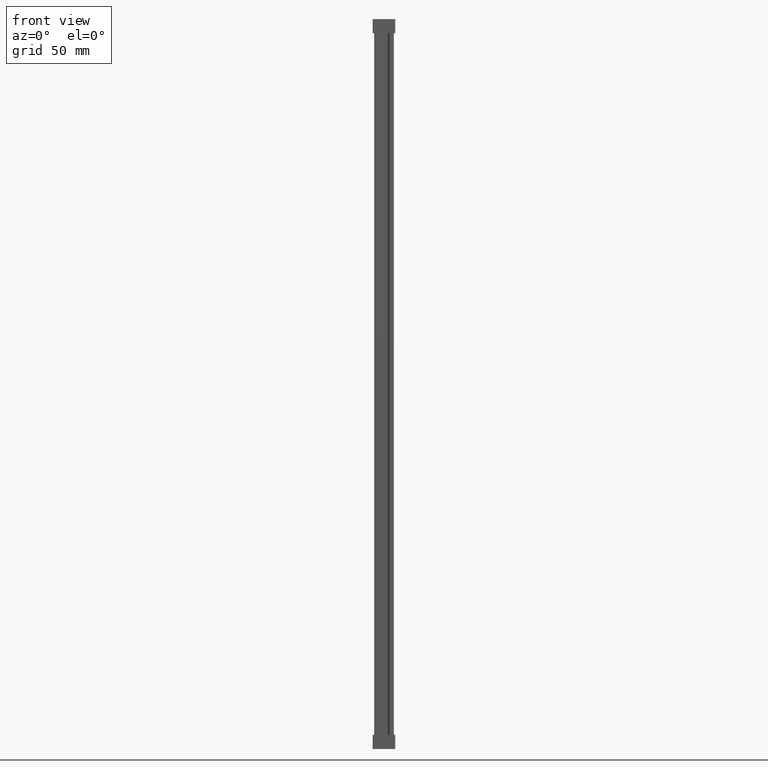
[diagram: clean part render]
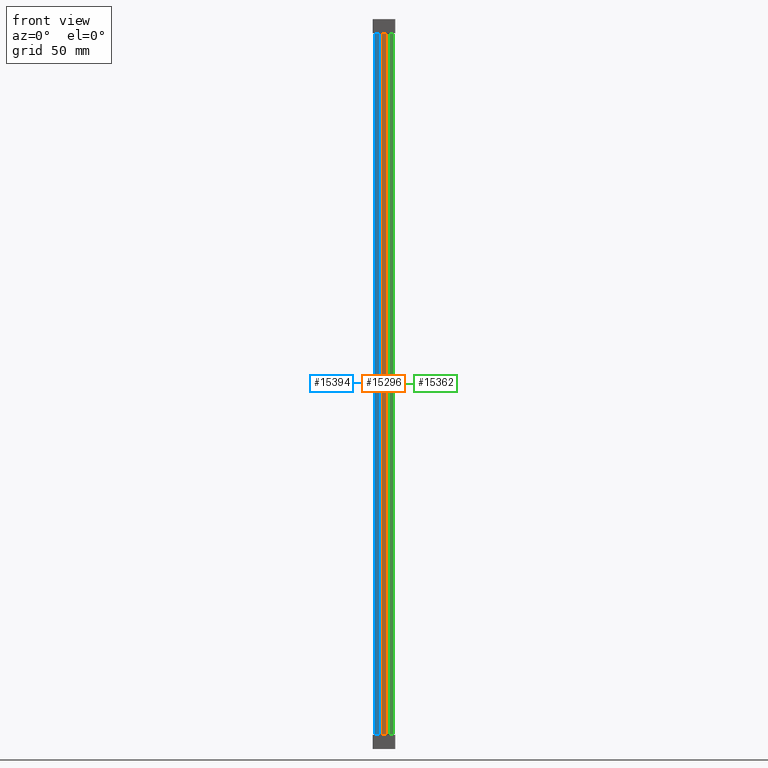
[diagram: same view with three faces highlighted in distinct colors, each labeled with its STEP entity id]
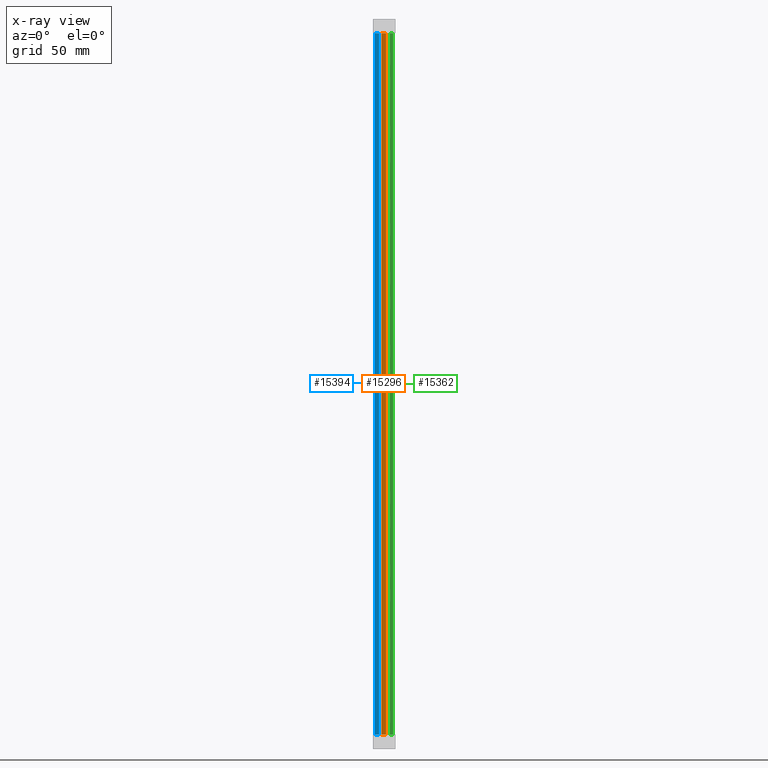
[diagram: x-ray of the same camera — body ghosted, the three highlighted faces saturated]
A machine part, front view with three faces highlighted in distinct colors.
The next image is the same camera in x-ray (body ghosted, the three faces saturated) — at least one of them is partly hidden behind the body in this view.
Their STEP definitions:

[orange] entity #15296 — the highlighted planar face has unit normal (0, 1, 0).
#11260 = EDGE_LOOP ( 'NONE', ( #41538, #41590, #41577, #41540 ) ) ;
#13841 = EDGE_CURVE ( 'NONE', #49850, #49802, #51714, .T. ) ;
#13859 = EDGE_CURVE ( 'NONE', #49802, #49923, #51932, .T. ) ;
#13893 = EDGE_CURVE ( 'NONE', #49923, #49872, #52161, .T. ) ;
#13930 = EDGE_CURVE ( 'NONE', #49872, #49850, #52339, .T. ) ;
#15296 = ADVANCED_FACE ( 'NONE', ( #18162 ), #18231, .F. ) ;
#18162 = FACE_OUTER_BOUND ( 'NONE', #11260, .T. ) ;
#18200 = CARTESIAN_POINT ( 'NONE',  ( 6.525356090326534200, -2.775557561562891400E-013, 219.0000000000000000 ) ) ;
#18208 = DIRECTION ( 'NONE',  ( 0.0000000000000000000, 1.000000000000000000, 0.0000000000000000000 ) ) ;
#18215 = DIRECTION ( 'NONE',  ( 0.0000000000000000000, -0.0000000000000000000, 1.000000000000000000 ) ) ;
#18231 = PLANE ( 'NONE',  #38372 ) ;
#38372 = AXIS2_PLACEMENT_3D ( 'NONE', #18200, #18208, #18215 ) ;
#41538 = ORIENTED_EDGE ( 'NONE', *, *, #13893, .F. ) ;
#41540 = ORIENTED_EDGE ( 'NONE', *, *, #13930, .F. ) ;
#41577 = ORIENTED_EDGE ( 'NONE', *, *, #13841, .F. ) ;
#41590 = ORIENTED_EDGE ( 'NONE', *, *, #13859, .F. ) ;
#45433 = CARTESIAN_POINT ( 'NONE',  ( 7.950000000000123600, -2.775557561562891400E-013, 208.6000000000546200 ) ) ;
#45533 = CARTESIAN_POINT ( 'NONE',  ( 4.549999999999910100, -2.775557561562891400E-013, -304.6000000000564100 ) ) ;
#45539 = CARTESIAN_POINT ( 'NONE',  ( 4.549999999999910100, -2.775557561562891400E-013, 208.6000000000563300 ) ) ;
#45573 = CARTESIAN_POINT ( 'NONE',  ( 7.950000000000123600, -2.775557561562891400E-013, -304.6000000000547100 ) ) ;
#49802 = VERTEX_POINT ( 'NONE', #45433 ) ;
#49850 = VERTEX_POINT ( 'NONE', #45539 ) ;
#49872 = VERTEX_POINT ( 'NONE', #45533 ) ;
#49923 = VERTEX_POINT ( 'NONE', #45573 ) ;
#51714 = LINE ( 'NONE', #51815, #56050 ) ;
#51815 = CARTESIAN_POINT ( 'NONE',  ( 6.466000000103465900, -2.775557561562891400E-013, 208.6000000000553900 ) ) ;
#51817 = DIRECTION ( 'NONE',  ( 1.000000000000000000, 0.0000000000000000000, -4.965472477636011600E-013 ) ) ;
#51914 = DIRECTION ( 'NONE',  ( -0.0000000000000000000, 0.0000000000000000000, -1.000000000000000000 ) ) ;
#51928 = CARTESIAN_POINT ( 'NONE',  ( 7.950000000000123600, -2.775557561562891400E-013, 219.0000000000000000 ) ) ;
#51932 = LINE ( 'NONE', #51928, #56218 ) ;
#52111 = CARTESIAN_POINT ( 'NONE',  ( 6.466000000103465900, -2.775557561562891400E-013, -304.6000000000554500 ) ) ;
#52113 = DIRECTION ( 'NONE',  ( -1.000000000000000000, 0.0000000000000000000, -4.965472477636011600E-013 ) ) ;
#52161 = LINE ( 'NONE', #52111, #56154 ) ;
#52332 = CARTESIAN_POINT ( 'NONE',  ( 4.549999999999910100, -2.775557561562891400E-013, 219.0000000000000000 ) ) ;
#52339 = LINE ( 'NONE', #52332, #55492 ) ;
#52347 = DIRECTION ( 'NONE',  ( 0.0000000000000000000, -0.0000000000000000000, 1.000000000000000000 ) ) ;
#55492 = VECTOR ( 'NONE', #52347, 1000.000000000000000 ) ;
#56050 = VECTOR ( 'NONE', #51817, 1000.000000000000000 ) ;
#56154 = VECTOR ( 'NONE', #52113, 1000.000000000000000 ) ;
#56218 = VECTOR ( 'NONE', #51914, 1000.000000000000000 ) ;

[blue] entity #15394 — the highlighted planar face has unit normal (0, 1, 0).
#11747 = EDGE_LOOP ( 'NONE', ( #26745, #26736, #26794, #26861 ) ) ;
#15394 = ADVANCED_FACE ( 'NONE', ( #27185 ), #27200, .F. ) ;
#15599 = EDGE_CURVE ( 'NONE', #36396, #36428, #27899, .T. ) ;
#15672 = EDGE_CURVE ( 'NONE', #36392, #36396, #28298, .T. ) ;
#15680 = EDGE_CURVE ( 'NONE', #36428, #36402, #27140, .T. ) ;
#15727 = EDGE_CURVE ( 'NONE', #36402, #36392, #16466, .T. ) ;
#16458 = DIRECTION ( 'NONE',  ( 1.000000000000000000, 0.0000000000000000000, -4.965472477636011600E-013 ) ) ;
#16466 = LINE ( 'NONE', #16470, #48487 ) ;
#16470 = CARTESIAN_POINT ( 'NONE',  ( 6.466000000103465900, 0.0000000000000000000, 208.6000000000553900 ) ) ;
#26736 = ORIENTED_EDGE ( 'NONE', *, *, #15672, .F. ) ;
#26745 = ORIENTED_EDGE ( 'NONE', *, *, #15599, .F. ) ;
#26794 = ORIENTED_EDGE ( 'NONE', *, *, #15727, .F. ) ;
#26861 = ORIENTED_EDGE ( 'NONE', *, *, #15680, .F. ) ;
#27140 = LINE ( 'NONE', #27168, #37793 ) ;
#27146 = DIRECTION ( 'NONE',  ( 0.0000000000000000000, 0.0000000000000000000, 1.000000000000000000 ) ) ;
#27168 = CARTESIAN_POINT ( 'NONE',  ( -0.1239999999999999000, -2.775557561562891400E-014, 219.0000000000000000 ) ) ;
#27184 = DIRECTION ( 'NONE',  ( 0.0000000000000000000, 1.000000000000000000, 0.0000000000000000000 ) ) ;
#27185 = FACE_OUTER_BOUND ( 'NONE', #11747, .T. ) ;
#27200 = PLANE ( 'NONE',  #38456 ) ;
#27217 = DIRECTION ( 'NONE',  ( 0.0000000000000000000, -0.0000000000000000000, 1.000000000000000000 ) ) ;
#27229 = CARTESIAN_POINT ( 'NONE',  ( 6.525356090326534200, 0.0000000000000000000, 219.0000000000000000 ) ) ;
#27899 = LINE ( 'NONE', #27904, #37623 ) ;
#27904 = CARTESIAN_POINT ( 'NONE',  ( 6.466000000103465900, 0.0000000000000000000, -304.6000000000554500 ) ) ;
#27919 = DIRECTION ( 'NONE',  ( -1.000000000000000000, 0.0000000000000000000, -4.965472477636011600E-013 ) ) ;
#28289 = DIRECTION ( 'NONE',  ( -0.0000000000000000000, 0.0000000000000000000, -1.000000000000000000 ) ) ;
#28298 = LINE ( 'NONE', #28302, #37816 ) ;
#28302 = CARTESIAN_POINT ( 'NONE',  ( 2.900000000000013700, 0.0000000000000000000, 219.0000000000000000 ) ) ;
#36392 = VERTEX_POINT ( 'NONE', #58601 ) ;
#36396 = VERTEX_POINT ( 'NONE', #58603 ) ;
#36402 = VERTEX_POINT ( 'NONE', #58540 ) ;
#36428 = VERTEX_POINT ( 'NONE', #58605 ) ;
#37623 = VECTOR ( 'NONE', #27919, 1000.000000000000000 ) ;
#37793 = VECTOR ( 'NONE', #27146, 1000.000000000000000 ) ;
#37816 = VECTOR ( 'NONE', #28289, 1000.000000000000000 ) ;
#38456 = AXIS2_PLACEMENT_3D ( 'NONE', #27229, #27184, #27217 ) ;
#48487 = VECTOR ( 'NONE', #16458, 1000.000000000000000 ) ;
#58540 = CARTESIAN_POINT ( 'NONE',  ( -0.1239999999999999300, -1.249000902703301100E-013, 208.6000000000586600 ) ) ;
#58601 = CARTESIAN_POINT ( 'NONE',  ( 2.900000000000013700, 0.0000000000000000000, 208.6000000000571500 ) ) ;
#58603 = CARTESIAN_POINT ( 'NONE',  ( 2.900000000000013700, 0.0000000000000000000, -304.6000000000572600 ) ) ;
#58605 = CARTESIAN_POINT ( 'NONE',  ( -0.1239999999999999300, -1.249000902703301100E-013, -304.6000000000586900 ) ) ;

[green] entity #15362 — the highlighted planar face has unit normal (0, 1, 0).
#3907 = VERTEX_POINT ( 'NONE', #43955 ) ;
#3911 = VERTEX_POINT ( 'NONE', #43950 ) ;
#5502 = VECTOR ( 'NONE', #25263, 1000.000000000000000 ) ;
#5525 = VECTOR ( 'NONE', #25316, 1000.000000000000000 ) ;
#5528 = VECTOR ( 'NONE', #25339, 1000.000000000000000 ) ;
#6896 = DIRECTION ( 'NONE',  ( -0.0000000000000000000, 0.0000000000000000000, -1.000000000000000000 ) ) ;
#6905 = CARTESIAN_POINT ( 'NONE',  ( 13.17637477970035000, -4.996003610813204400E-013, 219.0000000000000000 ) ) ;
#6910 = LINE ( 'NONE', #6905, #46421 ) ;
#11388 = EDGE_LOOP ( 'NONE', ( #50807, #50802, #50851, #50838 ) ) ;
#11981 = EDGE_CURVE ( 'NONE', #50707, #3911, #25174, .T. ) ;
#12010 = EDGE_CURVE ( 'NONE', #3907, #48148, #25350, .T. ) ;
#12013 = EDGE_CURVE ( 'NONE', #3911, #3907, #25271, .T. ) ;
#14707 = EDGE_CURVE ( 'NONE', #48148, #50707, #6910, .T. ) ;
#15362 = ADVANCED_FACE ( 'NONE', ( #18700 ), #18721, .F. ) ;
#18686 = DIRECTION ( 'NONE',  ( 0.0000000000000000000, -0.0000000000000000000, 1.000000000000000000 ) ) ;
#18690 = CARTESIAN_POINT ( 'NONE',  ( 6.525356090326534200, -4.996003610813204400E-013, 219.0000000000000000 ) ) ;
#18697 = DIRECTION ( 'NONE',  ( 0.0000000000000000000, 1.000000000000000000, 0.0000000000000000000 ) ) ;
#18700 = FACE_OUTER_BOUND ( 'NONE', #11388, .T. ) ;
#18721 = PLANE ( 'NONE',  #38403 ) ;
#25174 = LINE ( 'NONE', #25242, #5502 ) ;
#25242 = CARTESIAN_POINT ( 'NONE',  ( 6.466000000103465900, -4.996003610813204400E-013, -304.6000000000554500 ) ) ;
#25263 = DIRECTION ( 'NONE',  ( -1.000000000000000000, 0.0000000000000000000, -4.965472477636011600E-013 ) ) ;
#25271 = LINE ( 'NONE', #25323, #5528 ) ;
#25316 = DIRECTION ( 'NONE',  ( 1.000000000000000000, 0.0000000000000000000, -4.965472477636011600E-013 ) ) ;
#25323 = CARTESIAN_POINT ( 'NONE',  ( 10.67385165201982600, -4.996003610813204400E-013, 219.0000000000000000 ) ) ;
#25324 = CARTESIAN_POINT ( 'NONE',  ( 6.466000000103465900, -4.996003610813204400E-013, 208.6000000000553900 ) ) ;
#25339 = DIRECTION ( 'NONE',  ( 0.0000000000000000000, -0.0000000000000000000, 1.000000000000000000 ) ) ;
#25350 = LINE ( 'NONE', #25324, #5525 ) ;
#38403 = AXIS2_PLACEMENT_3D ( 'NONE', #18690, #18697, #18686 ) ;
#43950 = CARTESIAN_POINT ( 'NONE',  ( 10.67385165201980800, -3.885780586188047900E-013, -304.6000000000534000 ) ) ;
#43955 = CARTESIAN_POINT ( 'NONE',  ( 10.67385165201980800, -3.885780586188047900E-013, 208.6000000000532900 ) ) ;
#46272 = CARTESIAN_POINT ( 'NONE',  ( 13.17637477970035000, -4.996003610813204400E-013, -304.6000000000521500 ) ) ;
#46421 = VECTOR ( 'NONE', #6896, 1000.000000000000000 ) ;
#48148 = VERTEX_POINT ( 'NONE', #56660 ) ;
#50707 = VERTEX_POINT ( 'NONE', #46272 ) ;
#50802 = ORIENTED_EDGE ( 'NONE', *, *, #14707, .F. ) ;
#50807 = ORIENTED_EDGE ( 'NONE', *, *, #11981, .F. ) ;
#50838 = ORIENTED_EDGE ( 'NONE', *, *, #12013, .F. ) ;
#50851 = ORIENTED_EDGE ( 'NONE', *, *, #12010, .F. ) ;
#56660 = CARTESIAN_POINT ( 'NONE',  ( 13.17637477970035000, -4.996003610813204400E-013, 208.6000000000520600 ) ) ;